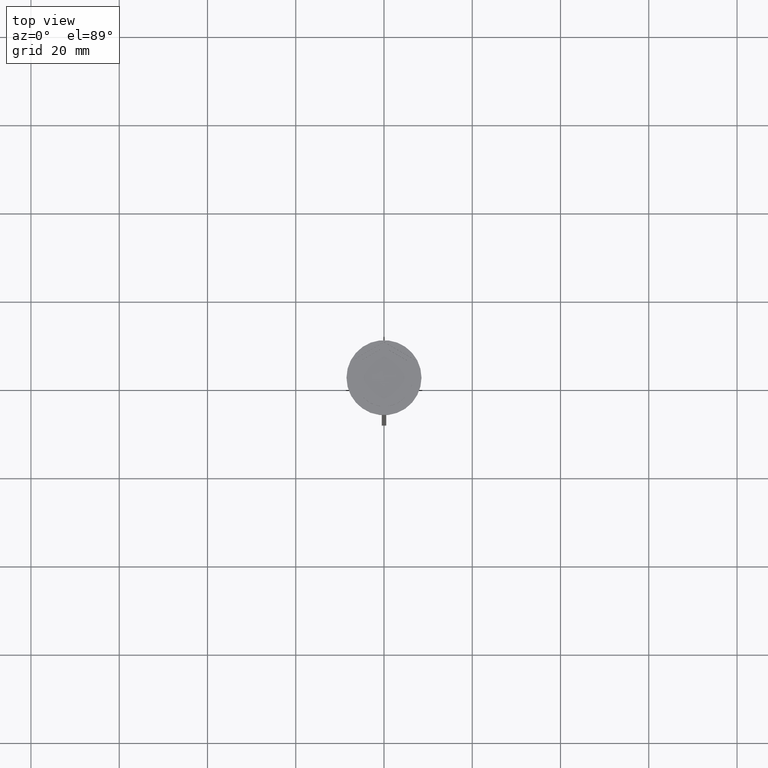
[diagram: clean part render]
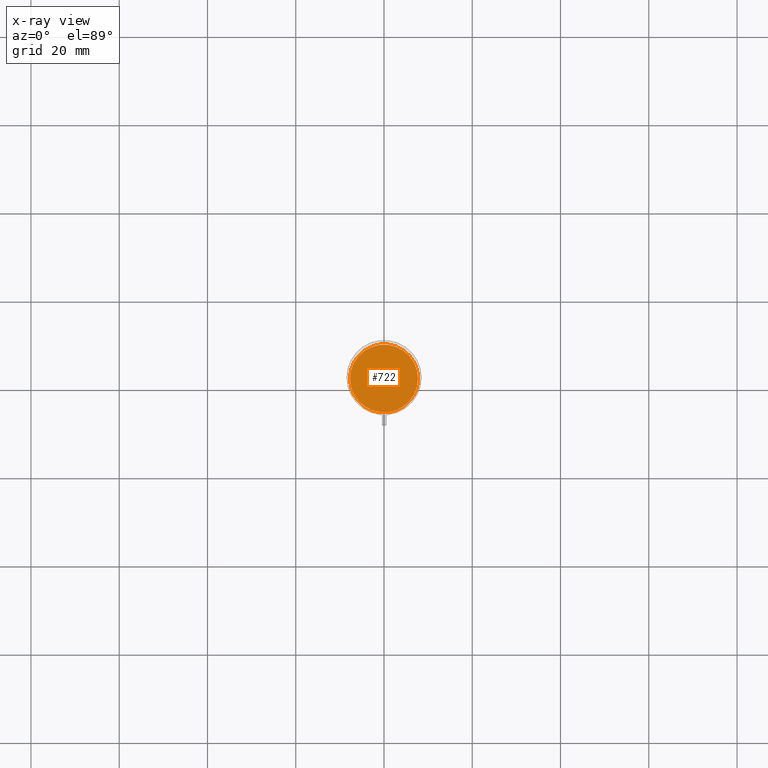
[diagram: x-ray — body ghosted, one internal face saturated and labeled with its STEP entity id]
A machine part, top view, then the same camera in x-ray: the body is ghosted and one INTERNAL B-rep face — a face not visible from any outside direction — is saturated and labeled: STEP entity #722.
In plain terms, the highlighted planar face has unit normal (0, 0, -1).
Its self-contained STEP definition (entity closure, byte-faithful):
#7 = ORIENTED_EDGE ( 'NONE', *, *, #1859, .T. ) ;
#140 = DIRECTION ( 'NONE',  ( -0.000000000000000000, -0.000000000000000000, 1.000000000000000000 ) ) ;
#145 = DIRECTION ( 'NONE',  ( 0.000000000000000000, 0.000000000000000000, -1.000000000000000000 ) ) ;
#313 = PLANE ( 'NONE',  #537 ) ;
#329 = CARTESIAN_POINT ( 'NONE',  ( 0.000000000000000000, 0.000000000000000000, -12.00000000000000000 ) ) ;
#347 = CIRCLE ( 'NONE', #2360, 7.700000000000001954 ) ;
#429 = ORIENTED_EDGE ( 'NONE', *, *, #2160, .T. ) ;
#509 = CARTESIAN_POINT ( 'NONE',  ( 0.000000000000000000, 0.000000000000000000, -12.00000000000000000 ) ) ;
#537 = AXIS2_PLACEMENT_3D ( 'NONE', #509, #145, #1096 ) ;
#694 = CARTESIAN_POINT ( 'NONE',  ( -7.700000000000001954, 0.000000000000000000, -12.00000000000000000 ) ) ;
#722 = ADVANCED_FACE ( 'NONE', ( #1873 ), #313, .F. ) ;
#1089 = DIRECTION ( 'NONE',  ( -1.000000000000000000, 0.000000000000000000, 0.000000000000000000 ) ) ;
#1096 = DIRECTION ( 'NONE',  ( -1.000000000000000000, 0.000000000000000000, -0.000000000000000000 ) ) ;
#1395 = VERTEX_POINT ( 'NONE', #694 ) ;
#1402 = EDGE_LOOP ( 'NONE', ( #7, #429 ) ) ;
#1539 = VERTEX_POINT ( 'NONE', #2470 ) ;
#1566 = DIRECTION ( 'NONE',  ( -0.000000000000000000, -0.000000000000000000, 1.000000000000000000 ) ) ;
#1753 = AXIS2_PLACEMENT_3D ( 'NONE', #329, #140, #1089 ) ;
#1859 = EDGE_CURVE ( 'NONE', #1395, #1539, #2284, .T. ) ;
#1873 = FACE_OUTER_BOUND ( 'NONE', #1402, .T. ) ;
#2160 = EDGE_CURVE ( 'NONE', #1539, #1395, #347, .T. ) ;
#2284 = CIRCLE ( 'NONE', #1753, 7.700000000000001954 ) ;
#2313 = DIRECTION ( 'NONE',  ( -1.000000000000000000, 0.000000000000000000, 0.000000000000000000 ) ) ;
#2360 = AXIS2_PLACEMENT_3D ( 'NONE', #2363, #1566, #2313 ) ;
#2363 = CARTESIAN_POINT ( 'NONE',  ( 0.000000000000000000, 0.000000000000000000, -12.00000000000000000 ) ) ;
#2470 = CARTESIAN_POINT ( 'NONE',  ( 7.700000000000001954, 9.613477373306725302E-16, -12.00000000000000000 ) ) ;